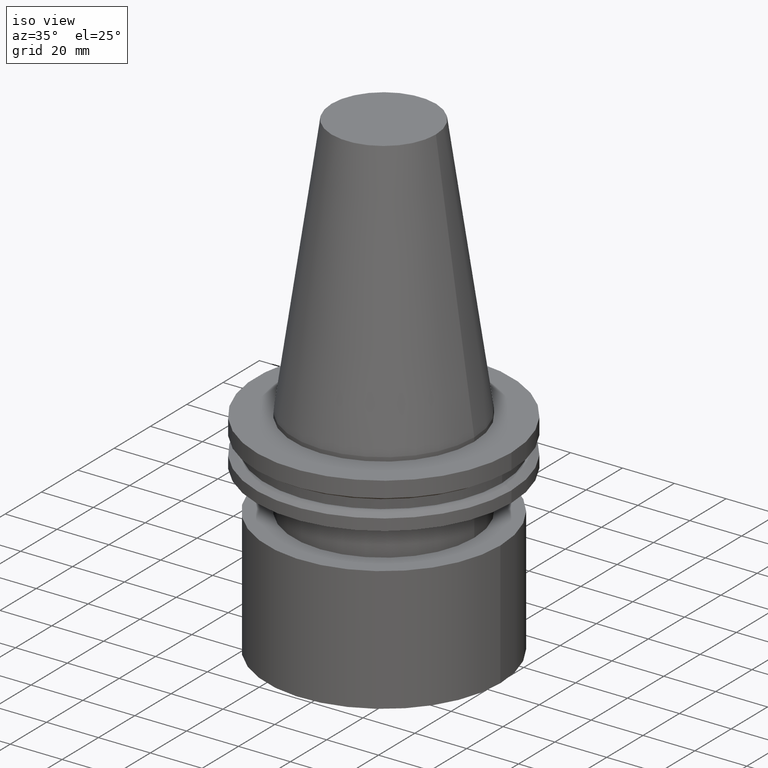
[diagram: clean part render]
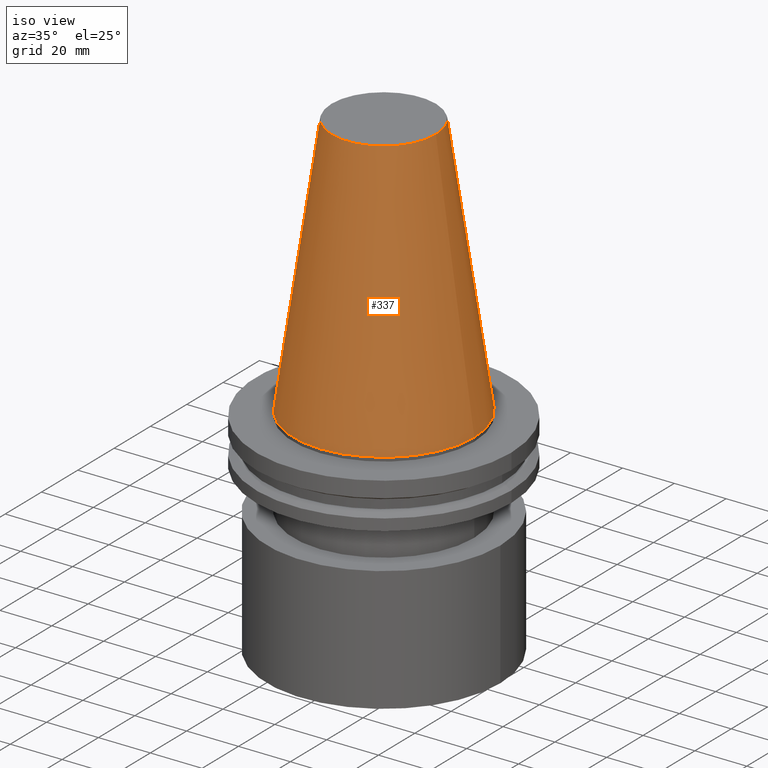
[diagram: same view with one face highlighted and labeled with its STEP entity id]
A machine part, iso view. The second image highlights one B-rep face of the part: STEP entity #337.
In plain terms, the highlighted conical surface has half-angle 8.297 deg.
Its self-contained STEP definition (entity closure, byte-faithful):
#49 = CARTESIAN_POINT ( 'NONE',  ( 0.000000000000000000, 0.000000000000000000, 0.000000000000000000 ) ) ;
#84 = VERTEX_POINT ( 'NONE', #363 ) ;
#99 = AXIS2_PLACEMENT_3D ( 'NONE', #221, #386, #383 ) ;
#117 = ORIENTED_EDGE ( 'NONE', *, *, #379, .T. ) ;
#136 = EDGE_CURVE ( 'NONE', #84, #84, #334, .T. ) ;
#139 = FACE_BOUND ( 'NONE', #160, .T. ) ;
#156 = CIRCLE ( 'NONE', #359, 34.92499999999999005 ) ;
#160 = EDGE_LOOP ( 'NONE', ( #185 ) ) ;
#169 = DIRECTION ( 'NONE',  ( 1.000000000000000000, 0.000000000000000000, 0.000000000000000000 ) ) ;
#170 = CONICAL_SURFACE ( 'NONE', #99, 34.92499999999999005, 0.1448138465474119452 ) ;
#174 = AXIS2_PLACEMENT_3D ( 'NONE', #279, #272, #186 ) ;
#185 = ORIENTED_EDGE ( 'NONE', *, *, #136, .F. ) ;
#186 = DIRECTION ( 'NONE',  ( 1.000000000000000000, 0.000000000000000000, 0.000000000000000000 ) ) ;
#221 = CARTESIAN_POINT ( 'NONE',  ( 0.000000000000000000, 0.000000000000000000, 0.000000000000000000 ) ) ;
#229 = DIRECTION ( 'NONE',  ( -0.000000000000000000, -0.000000000000000000, 1.000000000000000000 ) ) ;
#272 = DIRECTION ( 'NONE',  ( -0.000000000000000000, -0.000000000000000000, 1.000000000000000000 ) ) ;
#279 = CARTESIAN_POINT ( 'NONE',  ( 0.000000000000000000, 0.000000000000000000, 101.5999999999999801 ) ) ;
#285 = FACE_OUTER_BOUND ( 'NONE', #340, .T. ) ;
#297 = VERTEX_POINT ( 'NONE', #301 ) ;
#301 = CARTESIAN_POINT ( 'NONE',  ( 34.92499999999999005, 0.000000000000000000, 0.000000000000000000 ) ) ;
#334 = CIRCLE ( 'NONE', #174, 20.10819343178871321 ) ;
#337 = ADVANCED_FACE ( 'NONE', ( #139, #285 ), #170, .T. ) ;
#340 = EDGE_LOOP ( 'NONE', ( #117 ) ) ;
#359 = AXIS2_PLACEMENT_3D ( 'NONE', #49, #229, #169 ) ;
#363 = CARTESIAN_POINT ( 'NONE',  ( 20.10819343178871321, 0.000000000000000000, 101.5999999999999801 ) ) ;
#379 = EDGE_CURVE ( 'NONE', #297, #297, #156, .T. ) ;
#383 = DIRECTION ( 'NONE',  ( -1.000000000000000000, 0.000000000000000000, 0.000000000000000000 ) ) ;
#386 = DIRECTION ( 'NONE',  ( 0.000000000000000000, 0.000000000000000000, -1.000000000000000000 ) ) ;